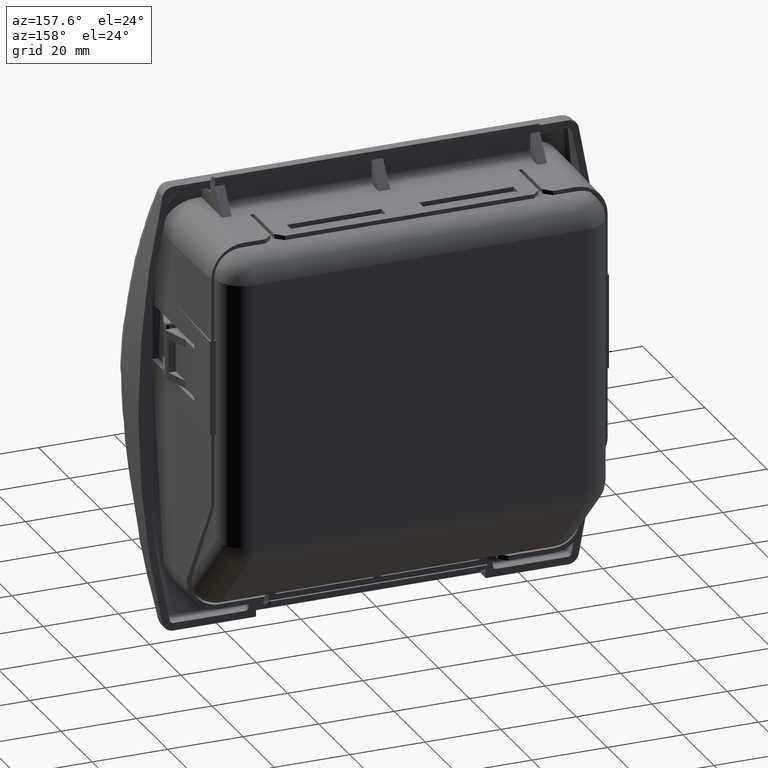
[diagram: clean part render]
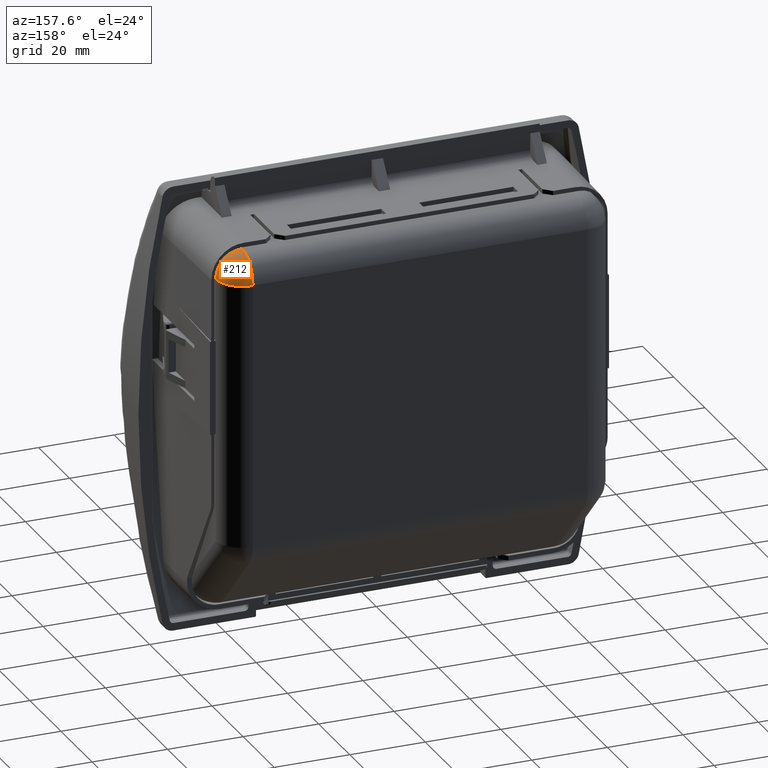
[diagram: same view with one face highlighted and labeled with its STEP entity id]
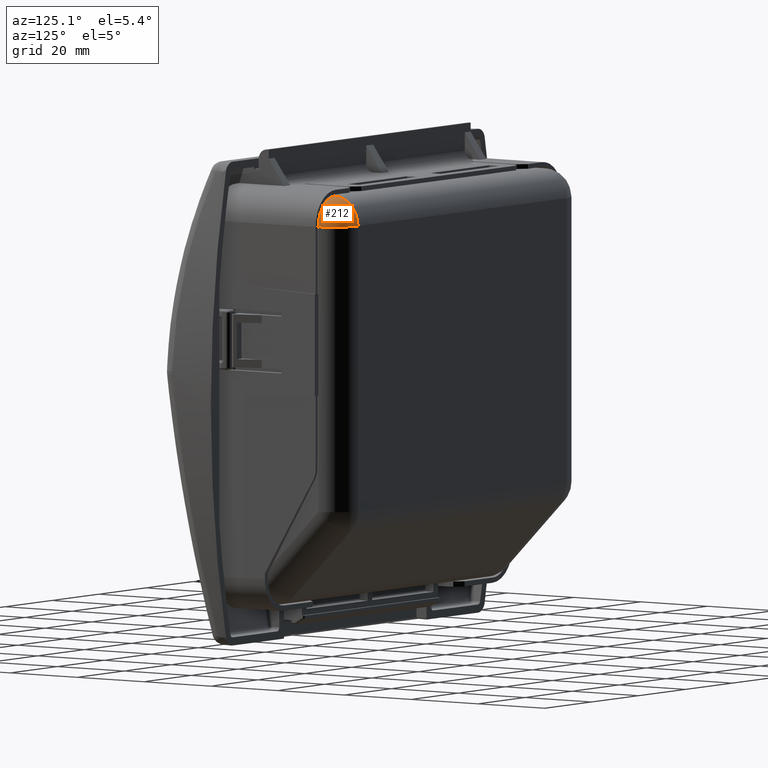
[diagram: same view with one face highlighted and labeled with its STEP entity id]
A machine part, auxiliary view. The second image highlights one B-rep face of the part: STEP entity #212.
A second angle (auxiliary view) of the same face is appended — the face is thin or edge-on in the first view.
In plain terms, the highlighted spherical surface has radius 7 mm.
Its self-contained STEP definition (entity closure, byte-faithful):
#212=ADVANCED_FACE('',(#1487),#1486,.T.);
#1486=SPHERICAL_SURFACE('',#8225,7.00000000000E+000);
#1487=FACE_OUTER_BOUND('',#8226,.T.);
#8222=CARTESIAN_POINT('',(4.43500000000E+001,3.00000000000E+001,4.33000000000E+001));
#8223=DIRECTION('',(-0.00000000000E+000,0.00000000000E+000,1.00000000000E+000));
#8224=DIRECTION('',(1.00000000000E+000,1.22460635382E-016,-0.00000000000E+000));
#8225=AXIS2_PLACEMENT_3D('',#8222,#8223,#8224);
#8226=EDGE_LOOP('',(#15354,#15355,#15356));
#15354=ORIENTED_EDGE('',*,*,#18825,.F.);
#15355=ORIENTED_EDGE('',*,*,#18823,.T.);
#15356=ORIENTED_EDGE('',*,*,#18826,.F.);
#18823=EDGE_CURVE('',#21708,#21787,#21788,.T.);
#18825=EDGE_CURVE('',#21708,#21548,#21800,.T.);
#18826=EDGE_CURVE('',#21548,#21787,#21806,.T.);
#21548=VERTEX_POINT('',#32901);
#21708=VERTEX_POINT('',#33014);
#21787=VERTEX_POINT('',#33064);
#21788=CIRCLE('',#33068,7.00000000000E+000);
#21800=CIRCLE('',#33075,7.00000000000E+000);
#21806=CIRCLE('',#33079,7.00000000000E+000);
#32901=CARTESIAN_POINT('',(4.43500000000E+001,3.00000000000E+001,5.03000000000E+001));
#33014=CARTESIAN_POINT('',(5.13500000000E+001,3.00000000000E+001,4.33000000000E+001));
#33064=CARTESIAN_POINT('',(4.43500000000E+001,3.70000000000E+001,4.33000000000E+001));
#33065=CARTESIAN_POINT('',(4.43500000000E+001,3.00000000000E+001,4.33000000000E+001));
#33066=DIRECTION('',(0.00000000000E+000,-0.00000000000E+000,1.00000000000E+000));
#33067=DIRECTION('',(1.00000000000E+000,-0.00000000000E+000,-0.00000000000E+000));
#33068=AXIS2_PLACEMENT_3D('',#33065,#33066,#33067);
#33072=CARTESIAN_POINT('',(4.43500000000E+001,3.00000000000E+001,4.33000000000E+001));
#33073=DIRECTION('',(0.00000000000E+000,-1.00000000000E+000,0.00000000000E+000));
#33074=DIRECTION('',(-0.00000000000E+000,-0.00000000000E+000,-1.00000000000E+000));
#33075=AXIS2_PLACEMENT_3D('',#33072,#33073,#33074);
#33076=CARTESIAN_POINT('',(4.43500000000E+001,3.00000000000E+001,4.33000000000E+001));
#33077=DIRECTION('',(-1.00000000000E+000,0.00000000000E+000,0.00000000000E+000));
#33078=DIRECTION('',(-0.00000000000E+000,-0.00000000000E+000,-1.00000000000E+000));
#33079=AXIS2_PLACEMENT_3D('',#33076,#33077,#33078);